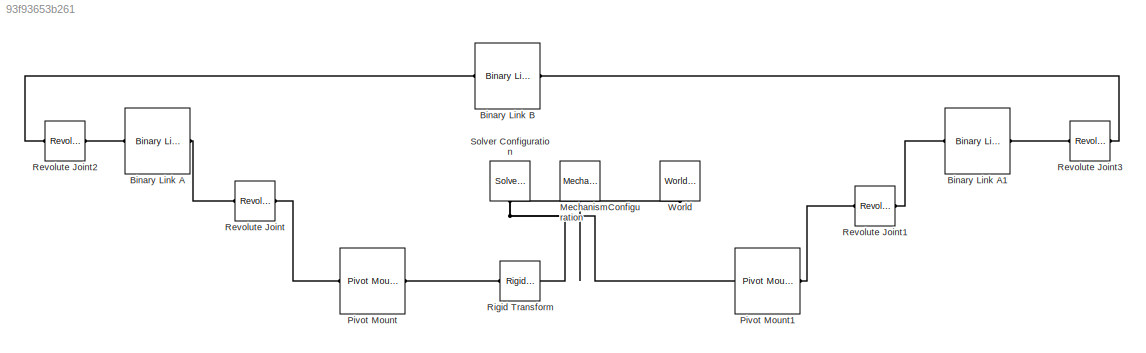
MODEL slx_93f93653b261
KIND model
CONFIG AbsTol = auto
CONFIG EnableMultiTasking = off
CONFIG FixedStep = auto
CONFIG MaxStep = auto
CONFIG MinStep = auto
CONFIG RelTol = 1e-3
CONFIG SampleTimeConstraint = Unconstrained
CONFIG SolverName = VariableStepAuto
CONFIG StartTime = 0.0
CONFIG StopTime = 60.0
BLOCK [Reference] Binary Link A  REF=smdoc_compound_rigid_bodies/Binary Link A
  NameLocation = top
  Ports = [0, 0, 0, 0, 0, 1, 1]
  SourceBlock = smdoc_compound_rigid_bodies/Binary Link A
  SourceProductBaseCode = MS
BLOCK [Reference] Binary Link A1  REF=smdoc_compound_rigid_bodies/Binary Link A
  Ports = [0, 0, 0, 0, 0, 1, 1]
  SourceBlock = smdoc_compound_rigid_bodies/Binary Link A
  SourceProductBaseCode = MS
BLOCK [Reference] Binary Link B  REF=smdoc_compound_rigid_bodies/Binary Link B
  Ports = [0, 0, 0, 0, 0, 1, 1]
  SourceBlock = smdoc_compound_rigid_bodies/Binary Link B
  SourceProductBaseCode = MS
BLOCK [Reference] MechanismConfiguration  REF=sm_lib/Utilities/Mechanism
Configuration
  NameLocation = left
  Ports = [0, 0, 0, 0, 0, 0, 1]
  SourceBlock = sm_lib/Utilities/Mechanism\nConfiguration
  SourceProductBaseCode = MS
  SourceType = Mechanism\nConfiguration
BLOCK [Reference] Pivot Mount  REF=smdoc_compound_rigid_bodies/Pivot Mount
  NameLocation = top
  Ports = [0, 0, 0, 0, 0, 1, 1]
  SourceBlock = smdoc_compound_rigid_bodies/Pivot Mount
  SourceProductBaseCode = MS
BLOCK [Reference] Pivot Mount1  REF=smdoc_compound_rigid_bodies/Pivot Mount
  Ports = [0, 0, 0, 0, 0, 1, 1]
  SourceBlock = smdoc_compound_rigid_bodies/Pivot Mount
  SourceProductBaseCode = MS
BLOCK [Reference] Revolute Joint  REF=sm_lib/Joints/Revolute Joint
  NameLocation = top
  Ports = [0, 0, 0, 0, 0, 1, 1]
  SourceBlock = sm_lib/Joints/Revolute Joint
  SourceProductBaseCode = MS
  SourceType = Revolute Joint
BLOCK [Reference] Revolute Joint1  REF=sm_lib/Joints/Revolute Joint
  Ports = [0, 0, 0, 0, 0, 1, 1]
  SourceBlock = sm_lib/Joints/Revolute Joint
  SourceProductBaseCode = MS
  SourceType = Revolute Joint
BLOCK [Reference] Revolute Joint2  REF=sm_lib/Joints/Revolute Joint
  NameLocation = top
  Ports = [0, 0, 0, 0, 0, 1, 1]
  SourceBlock = sm_lib/Joints/Revolute Joint
  SourceProductBaseCode = MS
  SourceType = Revolute Joint
BLOCK [Reference] Revolute Joint3  REF=sm_lib/Joints/Revolute Joint
  Ports = [0, 0, 0, 0, 0, 1, 1]
  SourceBlock = sm_lib/Joints/Revolute Joint
  SourceProductBaseCode = MS
  SourceType = Revolute Joint
BLOCK [Reference] Rigid Transform  REF=sm_lib/Frames and
Transforms/Rigid
Transform
  Ports = [0, 0, 0, 0, 0, 1, 1]
  SourceBlock = sm_lib/Frames and\nTransforms/Rigid\nTransform
  SourceProductBaseCode = MS
  SourceType = Rigid\nTransform
BLOCK [Reference] Solver Configuration  REF=nesl_utility/Solver
Configuration
  NameLocation = left
  Ports = [0, 0, 0, 0, 0, 0, 1]
  SourceBlock = nesl_utility/Solver\nConfiguration
  SourceProductBaseCode = PW,SS
  SourceType = Solver\nConfiguration
BLOCK [Reference] World  REF=sm_lib/Frames and
Transforms/World Frame
  NameLocation = left
  Ports = [0, 0, 0, 0, 0, 0, 1]
  SourceBlock = sm_lib/Frames and\nTransforms/World Frame
  SourceProductBaseCode = MS
  SourceType = World Frame
PLINE Binary Link A1:LConn1 -- Revolute Joint1:RConn1
PLINE Binary Link A1:RConn1 -- Revolute Joint3:LConn1
PLINE Binary Link A:LConn1 -- Revolute Joint:RConn1
PLINE Binary Link A:RConn1 -- Revolute Joint2:LConn1
PLINE Binary Link B:LConn1 -- Revolute Joint2:RConn1
PLINE Binary Link B:RConn1 -- Revolute Joint3:RConn1
PNET net1: MechanismConfiguration:RConn1 -- Pivot Mount1:LConn1 -- Rigid Transform:RConn1 -- Solver Configuration:RConn1 -- World:RConn1
PLINE Pivot Mount1:RConn1 -- Revolute Joint1:LConn1
PLINE Pivot Mount:LConn1 -- Rigid Transform:LConn1
PLINE Pivot Mount:RConn1 -- Revolute Joint:LConn1
note: PNET lines group multi-terminal physical nets as a canonical sorted terminal list (undirected conserving connections); 2-terminal nets keep the pairwise PLINE form
